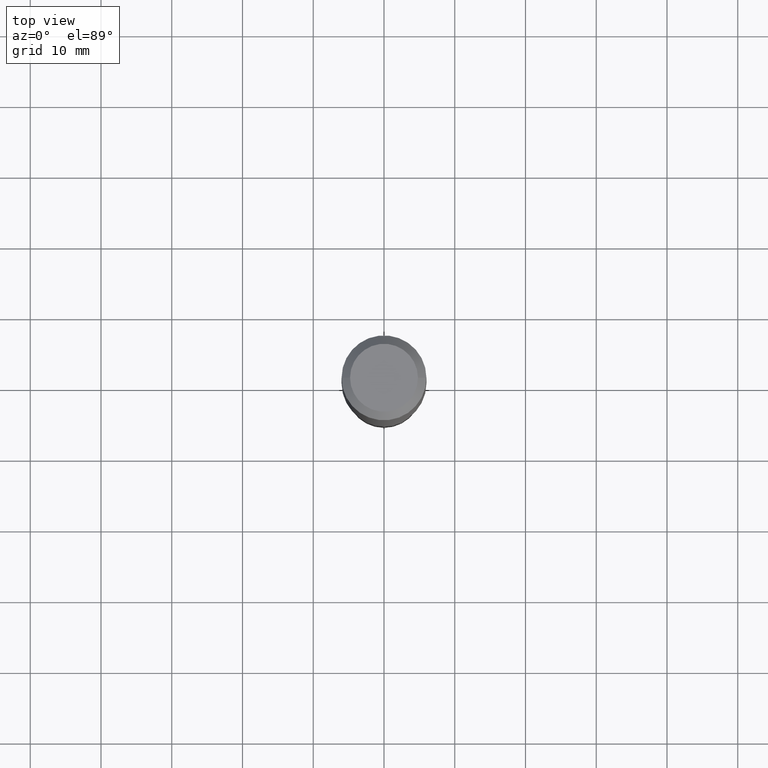
[diagram: clean part render]
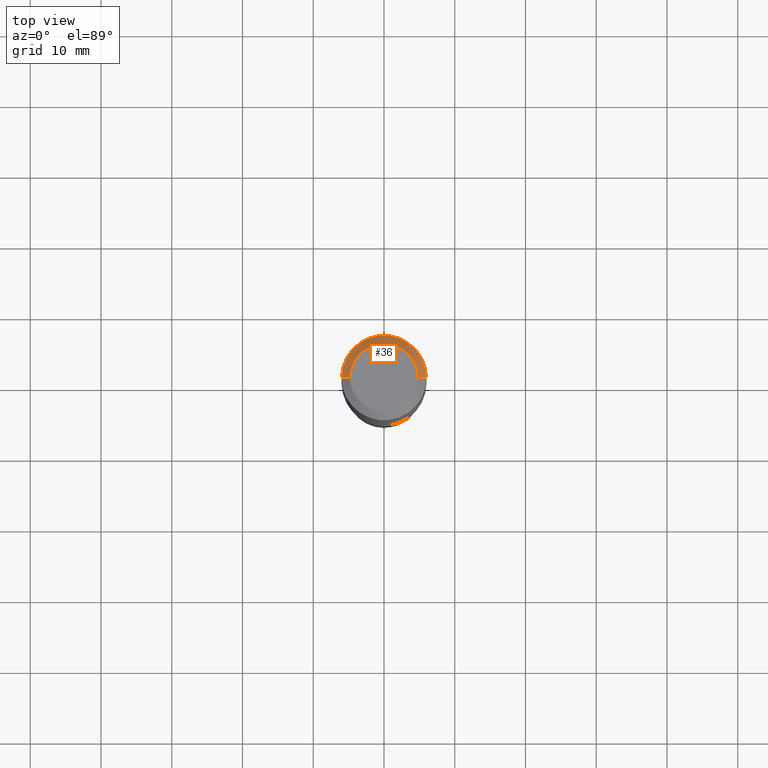
[diagram: same view with one face highlighted and labeled with its STEP entity id]
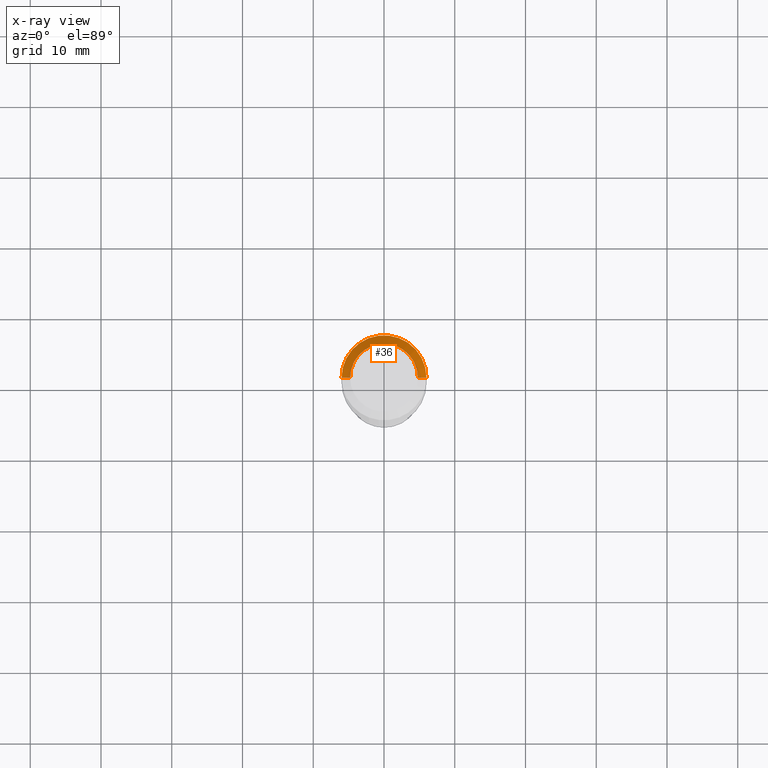
[diagram: x-ray of the same camera — body ghosted, the highlighted face saturated]
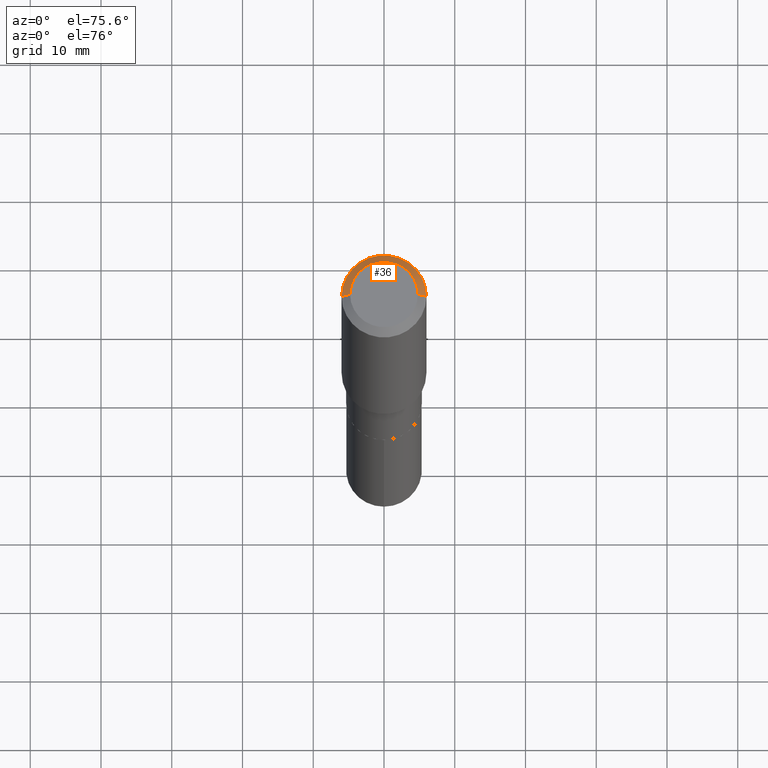
[diagram: same view with one face highlighted and labeled with its STEP entity id]
A machine part, top view. The second image highlights one B-rep face of the part: STEP entity #36.
The next image is the same camera in x-ray: the body ghosted, the highlighted face saturated — about 0% of this face is hidden behind the body in this view.
A second angle (auxiliary view) of the same face is appended — the face is thin or edge-on in the first view.
In plain terms, the highlighted conical surface has half-angle 45 deg.
Its self-contained STEP definition (entity closure, byte-faithful):
#13 = DIRECTION ( 'NONE',  ( -0.7071067811865453523, 2.468850131082234184E-15, -0.7071067811865496822 ) ) ;
#14 = ORIENTED_EDGE ( 'NONE', *, *, #229, .T. ) ;
#21 = AXIS2_PLACEMENT_3D ( 'NONE', #401, #199, #351 ) ;
#22 = EDGE_LOOP ( 'NONE', ( #338, #14, #57, #267 ) ) ;
#31 = DIRECTION ( 'NONE',  ( -1.000000000000000000, 6.982962677686266711E-15, 0.000000000000000000 ) ) ;
#36 = ADVANCED_FACE ( 'NONE', ( #154 ), #369, .T. ) ;
#47 = VERTEX_POINT ( 'NONE', #223 ) ;
#57 = ORIENTED_EDGE ( 'NONE', *, *, #474, .T. ) ;
#90 = AXIS2_PLACEMENT_3D ( 'NONE', #244, #291, #96 ) ;
#96 = DIRECTION ( 'NONE',  ( 1.000000000000000000, -6.982962677686266711E-15, 4.876185090822587894E-29 ) ) ;
#113 = CARTESIAN_POINT ( 'NONE',  ( -0.1889600000000000168, 1.401969416799070942E-15, 3.855188123706346622E-18 ) ) ;
#128 = VECTOR ( 'NONE', #159, 39.37007874015748143 ) ;
#154 = FACE_OUTER_BOUND ( 'NONE', #22, .T. ) ;
#159 = DIRECTION ( 'NONE',  ( 0.7071067811865453523, -7.319954787623248157E-15, -0.7071067811865496822 ) ) ;
#162 = CARTESIAN_POINT ( 'NONE',  ( -0.2361999999999999933, 1.484438206022545019E-15, -0.04724000000000028177 ) ) ;
#163 = VERTEX_POINT ( 'NONE', #239 ) ;
#175 = EDGE_CURVE ( 'NONE', #47, #286, #361, .T. ) ;
#194 = CIRCLE ( 'NONE', #21, 0.2361999999999999933 ) ;
#199 = DIRECTION ( 'NONE',  ( -2.445468806185136597E-29, 3.491481338843145583E-15, 1.000000000000000000 ) ) ;
#223 = CARTESIAN_POINT ( 'NONE',  ( 0.1889600000000000168, -1.540873453589747738E-15, 3.855188123725863225E-18 ) ) ;
#229 = EDGE_CURVE ( 'NONE', #47, #398, #237, .T. ) ;
#237 = LINE ( 'NONE', #392, #128 ) ;
#239 = CARTESIAN_POINT ( 'NONE',  ( -0.2361999999999999933, -1.479376323577688976E-15, -0.04724000000000028177 ) ) ;
#244 = CARTESIAN_POINT ( 'NONE',  ( -9.427742298522546243E-47, 1.346031739168365344E-32, 3.855188123715862256E-18 ) ) ;
#252 = CARTESIAN_POINT ( 'NONE',  ( 0.2361999999999999933, -1.814313362916447440E-15, -0.04724000000000028177 ) ) ;
#266 = DIRECTION ( 'NONE',  ( 2.445468806185136597E-29, -3.491481338843145583E-15, -1.000000000000000000 ) ) ;
#267 = ORIENTED_EDGE ( 'NONE', *, *, #479, .F. ) ;
#274 = AXIS2_PLACEMENT_3D ( 'NONE', #319, #266, #31 ) ;
#276 = LINE ( 'NONE', #162, #454 ) ;
#286 = VERTEX_POINT ( 'NONE', #113 ) ;
#291 = DIRECTION ( 'NONE',  ( -2.445468806185136597E-29, 3.491481338843145583E-15, 1.000000000000000000 ) ) ;
#319 = CARTESIAN_POINT ( 'NONE',  ( 1.155239464041865506E-30, -1.649375784469511859E-16, -0.04724000000000028177 ) ) ;
#338 = ORIENTED_EDGE ( 'NONE', *, *, #175, .F. ) ;
#351 = DIRECTION ( 'NONE',  ( 1.000000000000000000, -6.982962677686266711E-15, 0.000000000000000000 ) ) ;
#361 = CIRCLE ( 'NONE', #90, 0.1889600000000000168 ) ;
#369 = CONICAL_SURFACE ( 'NONE', #274, 0.2361999999999999933, 0.7853981633974452814 ) ;
#392 = CARTESIAN_POINT ( 'NONE',  ( 0.2361999999999999933, -1.785387205520586782E-15, -0.04724000000000028177 ) ) ;
#398 = VERTEX_POINT ( 'NONE', #252 ) ;
#401 = CARTESIAN_POINT ( 'NONE',  ( 1.155239464041865506E-30, -1.649375784469511859E-16, -0.04724000000000028177 ) ) ;
#454 = VECTOR ( 'NONE', #13, 39.37007874015748143 ) ;
#474 = EDGE_CURVE ( 'NONE', #398, #163, #194, .T. ) ;
#479 = EDGE_CURVE ( 'NONE', #286, #163, #276, .T. ) ;